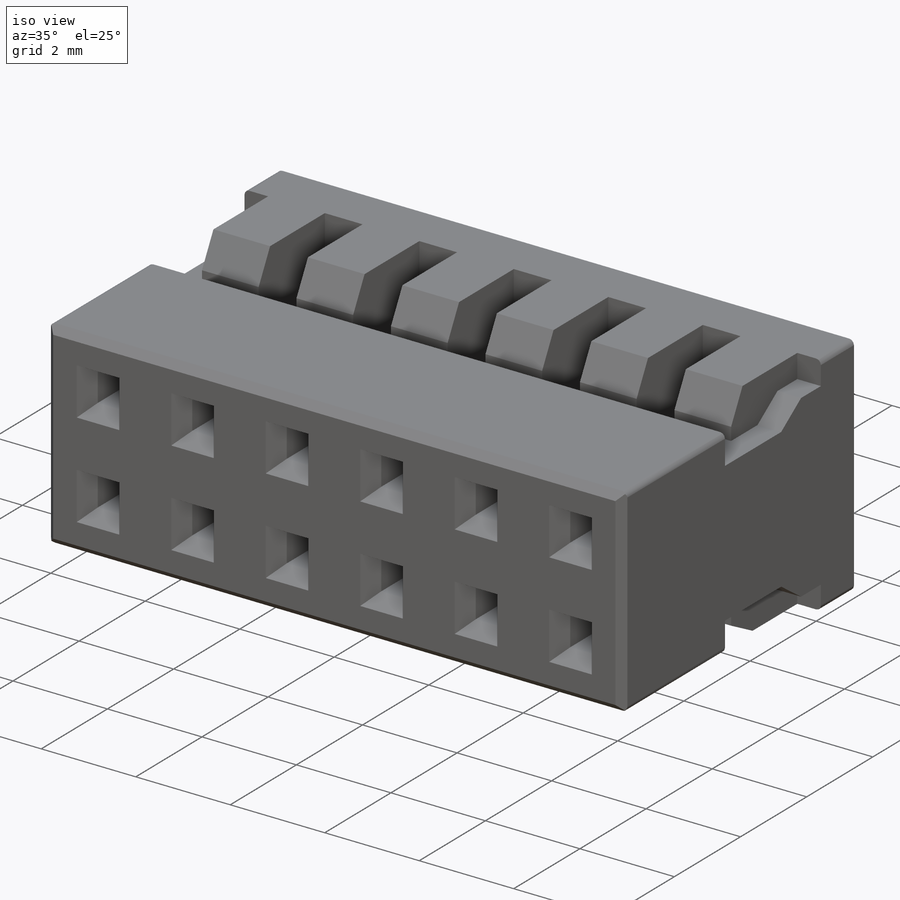
[diagram: iso view]
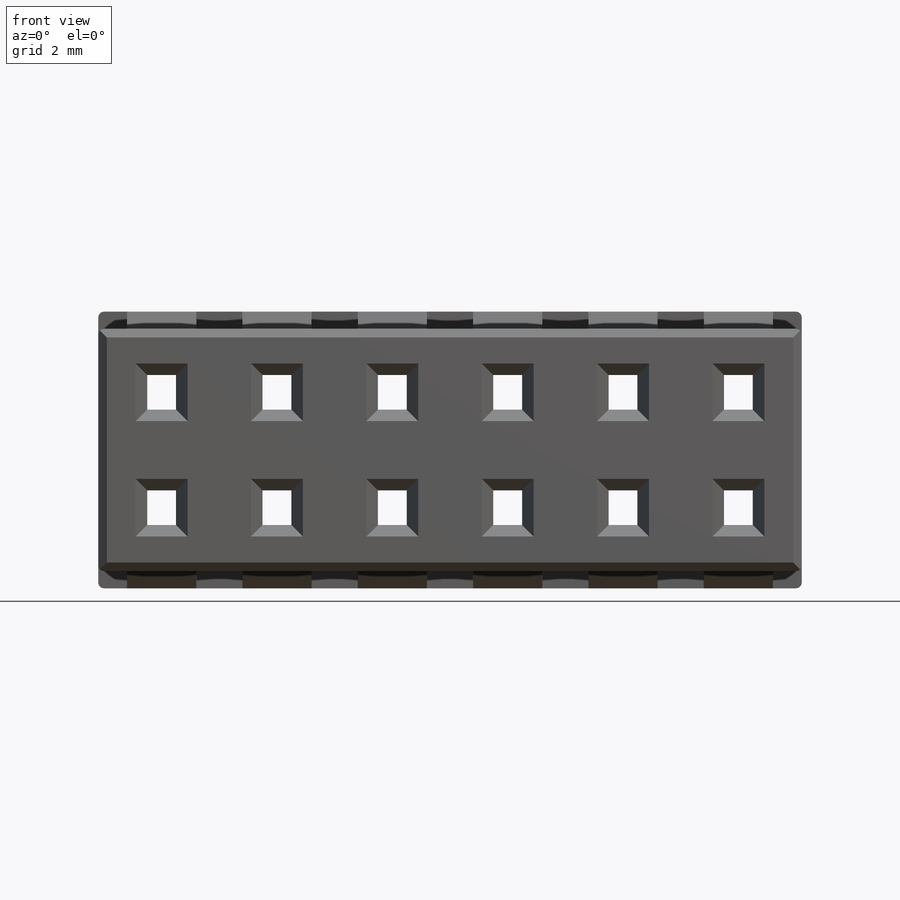
[diagram: front view]
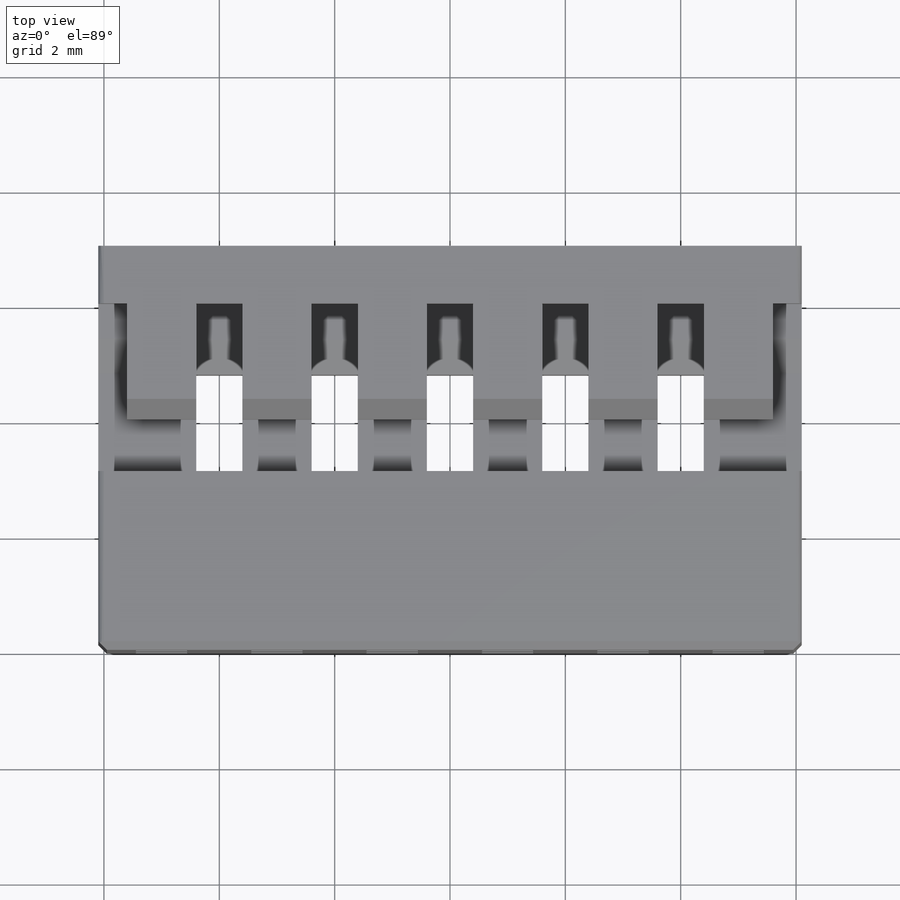
[diagram: top view]
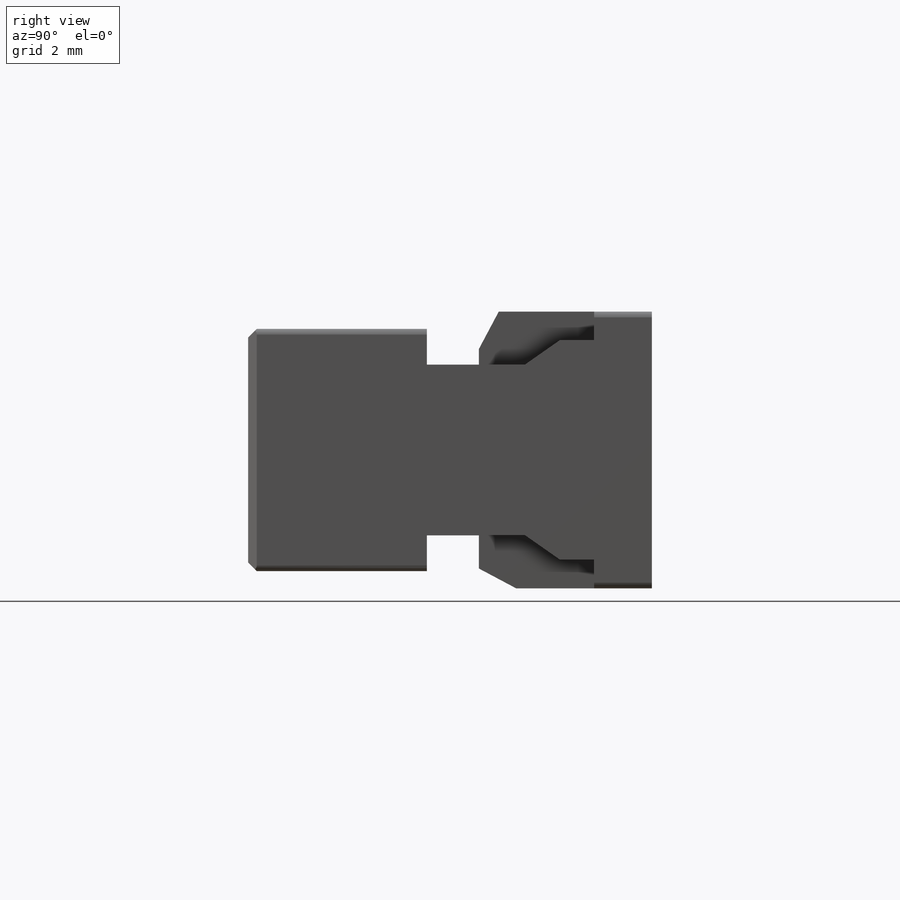
[diagram: right view]
SOLIDWORKS PART (.sldprt)
format: sldprt  version: not decoded by parser v0  size: 4,660,736 bytes
history: native  units: mm
features: sketch x41, cut_extrude x35, chamfer x14, plane x6, extrude x6, pattern_linear x2, fillet x2, material x1 (+13 scaffold rows collapsed)
feature tree (120):
  scaffold x13  (default folders/planes/origin — collapsed)
  material  "PVC Rigid"
  plane  "Plane2"  Offset=6.1mm
  sketch  "Sketch130"
  extrude  "Extrude21"  Depth=12.2mm
  sketch  "Sketch131"
  cut_extrude  "Cut-Extrude110"  Depth=0.5mm
  sketch  "Sketch132"
  cut_extrude  "Cut-Extrude111"  Depth=0.5mm
  sketch  "Sketch133"
  cut_extrude  "Cut-Extrude112"  Depth=0.5mm
  sketch  "Sketch134"
  cut_extrude  "Cut-Extrude113"  Depth=0.5mm
  sketch  "Sketch135"
  cut_extrude  "Cut-Extrude114"  Depth=4.8mm
  sketch  "Sketch136"
  cut_extrude  "Cut-Extrude115"  Depth=4.8mm
  sketch  "Sketch137"
  cut_extrude  "Cut-Extrude116"  Depth=4.8mm
  sketch  "Sketch138"
  cut_extrude  "Cut-Extrude117"  Depth=4.8mm
  sketch  "Sketch139"
  cut_extrude  "Cut-Extrude118"  Depth=4.8mm
  plane  "Plane3"
  sketch  "Sketch140"
  cut_extrude  "Cut-Extrude119"  Depth=0.9mm
  plane  "Plane4"
  sketch  "Sketch141"
  cut_extrude  "Cut-Extrude120"  Depth=0.9mm
  plane  "Plane5"
  sketch  "Sketch142"
  cut_extrude  "Cut-Extrude121"  Depth=0.9mm
  plane  "Plane6"
  sketch  "Sketch143"
  cut_extrude  "Cut-Extrude122"  Depth=0.9mm
  plane  "Plane7"
  sketch  "Sketch144"
  cut_extrude  "Cut-Extrude123"  Depth=2.85mm
  sketch  "Sketch145"
  cut_extrude  "Cut-Extrude124"  Depth=2.85mm
  sketch  "Sketch146"
  cut_extrude  "Cut-Extrude125"  Depth=2.85mm
  sketch  "Sketch147"
  cut_extrude  "Cut-Extrude126"  Depth=2.85mm
  sketch  "Sketch148"
  cut_extrude  "Cut-Extrude127"  Depth=2.85mm
  sketch  "Sketch149"
  cut_extrude  "Cut-Extrude128"  Depth=0.3mm
  sketch  "Sketch150"
  cut_extrude  "Cut-Extrude129"  Depth=0.3mm
  sketch  "Sketch151"
  cut_extrude  "Cut-Extrude130"  Depth=1mm
  sketch  "Sketch152"
  cut_extrude  "Cut-Extrude131"  Depth=1mm
  sketch  "Sketch153"
  cut_extrude  "Cut-Extrude132"  Depth=1mm
  sketch  "Sketch154"
  cut_extrude  "Cut-Extrude133"  Depth=1mm
  sketch  "Sketch155"
  cut_extrude  "Cut-Extrude134"  Depth=1mm
  sketch  "Sketch156"
  extrude  "Extrude22"  Depth=1.2mm
  sketch  "Sketch157"
  extrude  "Extrude23"  Depth=1.2mm
  sketch  "Sketch158"
  extrude  "Extrude24"  Depth=1.2mm
  sketch  "Sketch159"
  extrude  "Extrude25"  Depth=1.2mm
  sketch  "Sketch160"
  extrude  "Extrude26"  Depth=1.2mm
  sketch  "Sketch161"
  cut_extrude  "Cut-Extrude135"  Depth=1mm
  pattern_linear  "LPattern13"  Count1=5 Count2=1 Spacing1=2mm Spacing2=100mm
  sketch  "Sketch162"
  cut_extrude  "Cut-Extrude136"  Depth=0.620125mm
  sketch  "Sketch163"
  cut_extrude  "Cut-Extrude137"  Depth=0.620125mm
  sketch  "Sketch164"
  cut_extrude  "Cut-Extrude138"  Depth=0.620125mm
  sketch  "Sketch165"
  cut_extrude  "Cut-Extrude139"  Depth=0.620125mm
  sketch  "Sketch166"
  cut_extrude  "Cut-Extrude140"  Depth=0.620125mm
  sketch  "Sketch167"
  cut_extrude  "Cut-Extrude141"  Depth=0.620125mm
  sketch  "Sketch168"
  cut_extrude  "Cut-Extrude142"  Depth=0.620125mm
  sketch  "Sketch169"
  cut_extrude  "Cut-Extrude143"  Depth=0.620125mm
  chamfer  "Chamfer85"  Distance=0.420125mm Angle=55deg
  chamfer  "Chamfer86"  Distance=0.420125mm Angle=55deg
  chamfer  "Chamfer87"  Distance=0.420125mm Angle=55deg
  chamfer  "Chamfer88"  Distance=0.420125mm Angle=55deg
  chamfer  "Chamfer89"  Distance=0.420125mm Angle=55deg
  chamfer  "Chamfer90"  Distance=0.6mm Angle=35deg
  chamfer  "Chamfer91"  Distance=0.6mm Angle=35deg
  chamfer  "Chamfer92"  Distance=0.6mm Angle=35deg
  chamfer  "Chamfer93"  Distance=0.6mm Angle=35deg
  chamfer  "Chamfer94"  Distance=0.6mm Angle=35deg
  chamfer  "Chamfer95"  Distance=0.345611mm Angle=62deg
  chamfer  "Chamfer96"  Distance=0.65mm Angle=28deg
  sketch  "Sketch170"
  cut_extrude  "Cut-Extrude144"  Depth=7mm
  chamfer  "Chamfer97"  Distance=0.2mm Angle=60.255119deg
  chamfer  "Chamfer98"  Distance=0.15mm Angle=45deg
  fillet  "Fillet13"  Radius=0.1mm
  fillet  "Fillet14"  Radius=0.1mm
  pattern_linear  "LPattern14"  Count1=6 Count2=2 Spacing1=2mm Spacing2=2mm
decode coverage: 59 of 100 modeling features carry decoded parameters
note: suppression state not decoded; provenance and decode notes live in map.json
